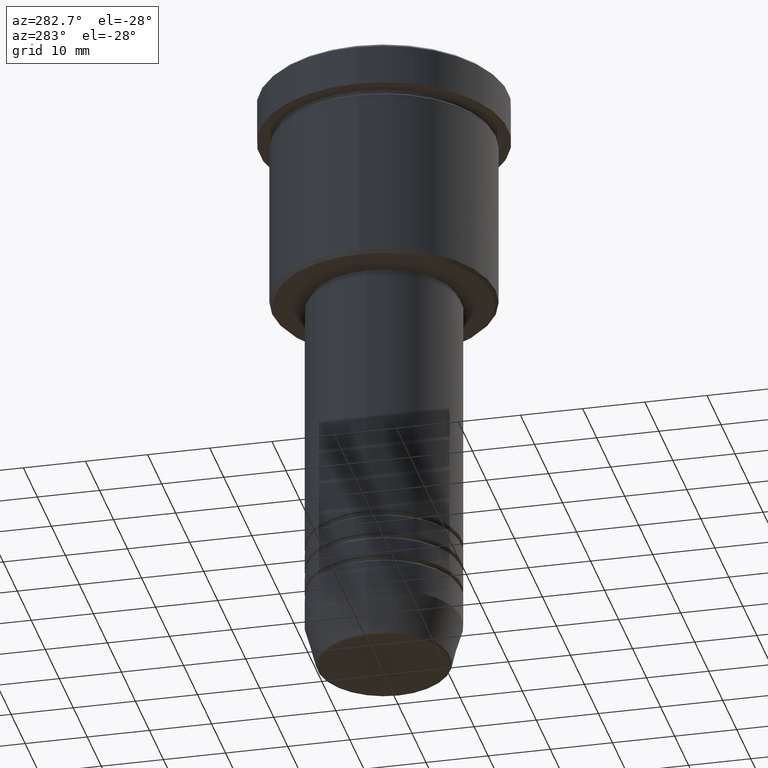
[diagram: clean part render]
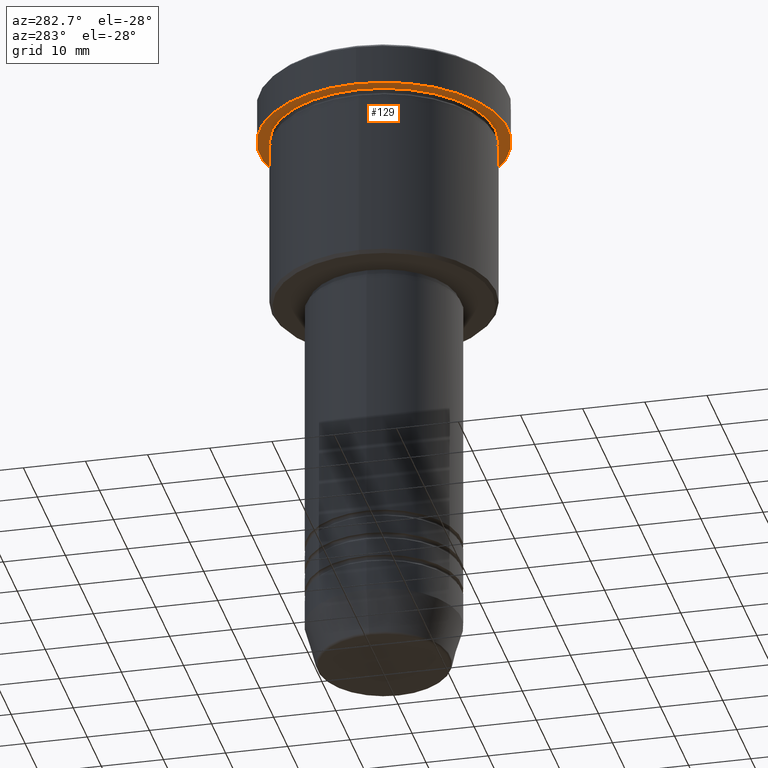
[diagram: same view with one face highlighted and labeled with its STEP entity id]
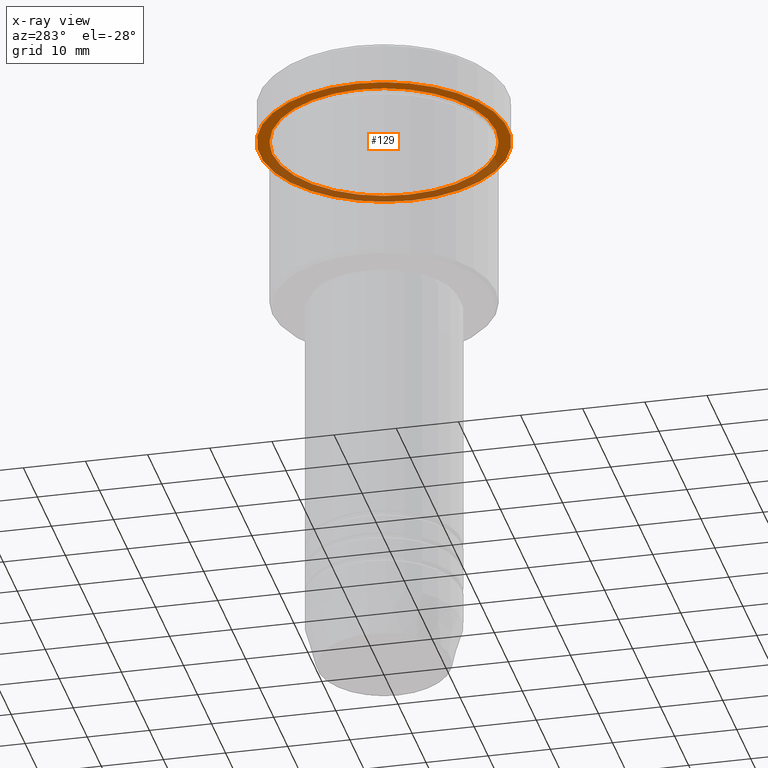
[diagram: x-ray of the same camera — body ghosted, the highlighted face saturated]
A machine part, auxiliary view. The second image highlights one B-rep face of the part: STEP entity #129.
The next image is the same camera in x-ray: the body ghosted, the highlighted face saturated — about 38% of this face is hidden behind the body in this view.
In plain terms, the highlighted planar face has unit normal (0, 0, -1).
Its self-contained STEP definition (entity closure, byte-faithful):
#48 = DIRECTION ( 'NONE',  ( -0.000000000000000000, -0.000000000000000000, 1.000000000000000000 ) ) ;
#79 = CIRCLE ( 'NONE', #429, 18.00000000000000000 ) ;
#80 = CIRCLE ( 'NONE', #1002, 18.00000000000000000 ) ;
#94 = EDGE_LOOP ( 'NONE', ( #1152, #955 ) ) ;
#129 = ADVANCED_FACE ( 'NONE', ( #765, #1146 ), #336, .T. ) ;
#140 = CARTESIAN_POINT ( 'NONE',  ( 0.000000000000000000, 0.000000000000000000, -6.999999999999995559 ) ) ;
#240 = CARTESIAN_POINT ( 'NONE',  ( 0.000000000000000000, 0.000000000000000000, -6.999999999999995559 ) ) ;
#257 = VERTEX_POINT ( 'NONE', #627 ) ;
#263 = EDGE_LOOP ( 'NONE', ( #609, #880 ) ) ;
#283 = VERTEX_POINT ( 'NONE', #720 ) ;
#333 = DIRECTION ( 'NONE',  ( -0.000000000000000000, -0.000000000000000000, 1.000000000000000000 ) ) ;
#336 = PLANE ( 'NONE',  #517 ) ;
#404 = DIRECTION ( 'NONE',  ( -0.000000000000000000, -0.000000000000000000, 1.000000000000000000 ) ) ;
#411 = CARTESIAN_POINT ( 'NONE',  ( 18.00000000000000000, 2.204364238465235428E-15, -6.999999999999995559 ) ) ;
#429 = AXIS2_PLACEMENT_3D ( 'NONE', #677, #404, #1049 ) ;
#482 = EDGE_CURVE ( 'NONE', #888, #283, #666, .T. ) ;
#505 = DIRECTION ( 'NONE',  ( 0.000000000000000000, 0.000000000000000000, -1.000000000000000000 ) ) ;
#517 = AXIS2_PLACEMENT_3D ( 'NONE', #1065, #505, #770 ) ;
#524 = VERTEX_POINT ( 'NONE', #411 ) ;
#525 = EDGE_CURVE ( 'NONE', #283, #888, #1020, .T. ) ;
#541 = EDGE_CURVE ( 'NONE', #257, #524, #79, .T. ) ;
#552 = CARTESIAN_POINT ( 'NONE',  ( 20.00000000000000000, 0.000000000000000000, -6.999999999999995559 ) ) ;
#583 = DIRECTION ( 'NONE',  ( 1.000000000000000000, 0.000000000000000000, 0.000000000000000000 ) ) ;
#609 = ORIENTED_EDGE ( 'NONE', *, *, #541, .T. ) ;
#615 = AXIS2_PLACEMENT_3D ( 'NONE', #1106, #730, #648 ) ;
#627 = CARTESIAN_POINT ( 'NONE',  ( -18.00000000000000000, 0.000000000000000000, -6.999999999999995559 ) ) ;
#648 = DIRECTION ( 'NONE',  ( 1.000000000000000000, 0.000000000000000000, 0.000000000000000000 ) ) ;
#666 = CIRCLE ( 'NONE', #615, 20.00000000000000000 ) ;
#677 = CARTESIAN_POINT ( 'NONE',  ( 0.000000000000000000, 0.000000000000000000, -6.999999999999995559 ) ) ;
#720 = CARTESIAN_POINT ( 'NONE',  ( -20.00000000000000000, 2.449293598294706513E-15, -6.999999999999995559 ) ) ;
#730 = DIRECTION ( 'NONE',  ( -0.000000000000000000, -0.000000000000000000, 1.000000000000000000 ) ) ;
#751 = DIRECTION ( 'NONE',  ( -1.000000000000000000, 0.000000000000000000, 0.000000000000000000 ) ) ;
#765 = FACE_BOUND ( 'NONE', #263, .T. ) ;
#770 = DIRECTION ( 'NONE',  ( -1.000000000000000000, 0.000000000000000000, -0.000000000000000000 ) ) ;
#861 = AXIS2_PLACEMENT_3D ( 'NONE', #240, #333, #583 ) ;
#880 = ORIENTED_EDGE ( 'NONE', *, *, #1026, .T. ) ;
#888 = VERTEX_POINT ( 'NONE', #552 ) ;
#955 = ORIENTED_EDGE ( 'NONE', *, *, #525, .F. ) ;
#1002 = AXIS2_PLACEMENT_3D ( 'NONE', #140, #48, #751 ) ;
#1020 = CIRCLE ( 'NONE', #861, 20.00000000000000000 ) ;
#1026 = EDGE_CURVE ( 'NONE', #524, #257, #80, .T. ) ;
#1049 = DIRECTION ( 'NONE',  ( -1.000000000000000000, 0.000000000000000000, 0.000000000000000000 ) ) ;
#1065 = CARTESIAN_POINT ( 'NONE',  ( 0.000000000000000000, 20.00000000000000000, -6.999999999999995559 ) ) ;
#1106 = CARTESIAN_POINT ( 'NONE',  ( 0.000000000000000000, 0.000000000000000000, -6.999999999999995559 ) ) ;
#1146 = FACE_OUTER_BOUND ( 'NONE', #94, .T. ) ;
#1152 = ORIENTED_EDGE ( 'NONE', *, *, #482, .F. ) ;